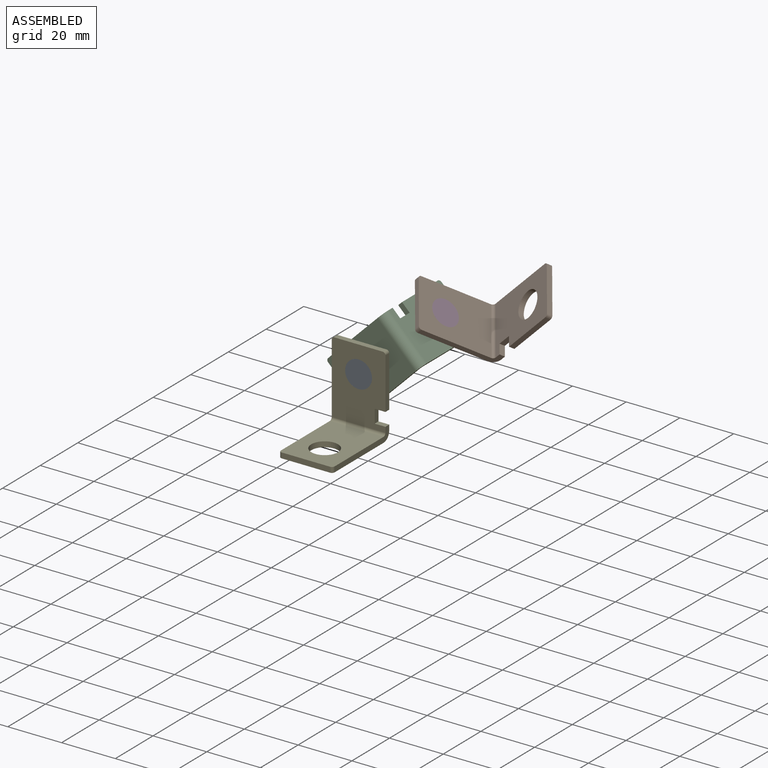
[diagram: assembled view]
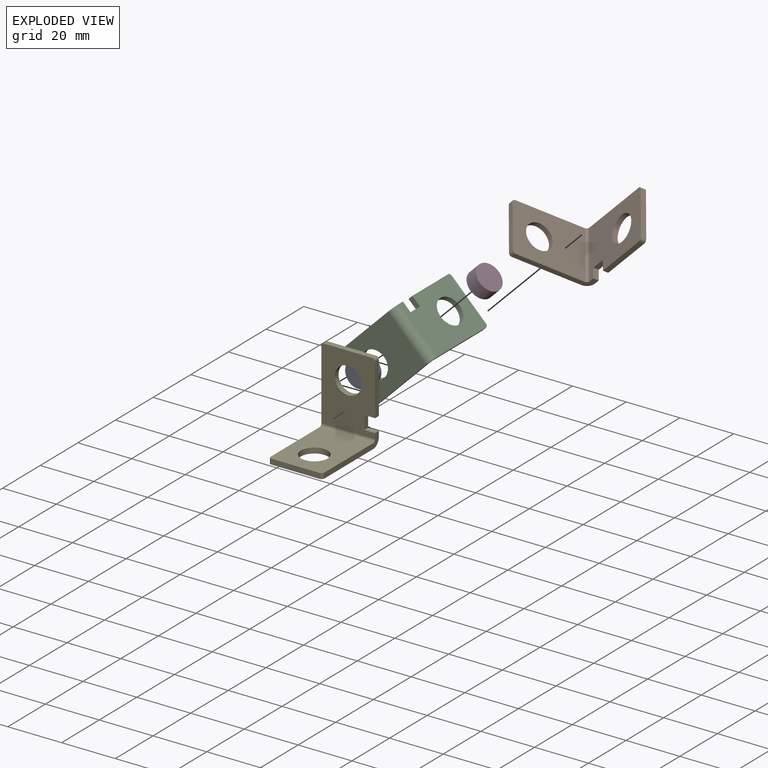
[diagram: exploded view]
GUIDED TOUR — MATED ASSEMBLY (Onshape document 0296f188ddc150b74b45b9b5, AutoMate assembly 0296f188ddc150b74b45b9b5_5ce83cc4b734294fbec21e1a_2b600807c86d1e4bce455327_default)

This assembly has 5 components, labeled P0..P4 below (a component is one placed occurrence of a part; the same part can appear more than once), held together by 11 mates. A mate is a constraint between two components; its type names the relative motion it leaves free:
  CYLINDRICAL — leaves both rotation about and translation along the listed axis free,
  PARALLEL — keeps the two listed directions parallel,
  PLANAR — leaves sliding in the plane through the listed point (normal = the listed direction) and rotation about that normal free.
Axis/direction vectors are unit vectors and 'through' points are millimeter coordinates, both in the assembly's world frame.

MATES
  1. CYLINDRICAL "Cylindrical 4": P2 <-> P3, axis (-0.707, 0.000, -0.707) through (8.53, 59.26, 21.64) mm
  2. PLANAR "Planar 1": P2 <-> P0, direction (0.000, 1.000, 0.000) through (-2.00, 41.26, 11.11) mm
  3. PARALLEL "Parallel 1": P0 <-> P4, direction (0.000, -1.000, 0.000) through (-4.90, 36.26, 8.20) mm
  4. CYLINDRICAL "Cylindrical 1": P0 <-> P4, axis (0.000, -1.000, 0.000) through (-4.90, 38.76, 8.20) mm
  5. CYLINDRICAL "Cylindrical 3": P2 <-> P3, axis (0.707, 0.000, 0.707) through (9.24, 59.26, 22.34) mm
  6. PLANAR "Planar 2": P4 <-> P0, direction (0.000, -1.000, 0.000) through (-5.26, 36.26, 4.47) mm
  7. CYLINDRICAL "Cylindrical 5": P1 <-> P3, axis (0.707, 0.000, 0.707) through (11.36, 59.26, 24.47) mm
  8. PLANAR "Planar 4": P1 <-> P3, direction (0.707, 0.000, 0.707) through (13.42, 62.17, 22.41) mm
  9. PLANAR "Planar 3": P2 <-> P3, direction (-0.707, 0.000, -0.707) through (7.83, 69.26, 20.93) mm
  10. PARALLEL "Parallel 2": P2 <-> P0, direction (0.000, 1.000, 0.000) through (-2.00, 41.26, 11.11) mm
  11. CYLINDRICAL "Cylindrical 2": P0 <-> P2, axis (0.000, -1.000, 0.000) through (-4.90, 38.76, 8.20) mm

ASSEMBLY ORDER
  1. P1 — the base component [order verified]
  2. P3 [order verified]
  3. P2 [order verified]
  4. P0 [order verified]
  5. P4 [order verified]
(P2, P3 verified with a relaxed clearance tolerance: the source model stores slight part interference there.)
Order-tag legend:
  [order verified] — this step's position reverses a verified removal order: the component was checked to insert without passing through the ones already placed.

Of the 5 components, 2 carry the full construction recipe — the FeatureScript program that regenerates the part's solid from scratch; the rest are supplied as boundary geometry only.
Each toured component is shown spotlighted twice — in the assembled view, then in the exploded view, where a leader line traces a displaced component back to its assembled socket (saturated green if recipe-attached, orange if geometry-only; every other component desaturated gray) — followed by its recipe or geometry summary and the mates that hold it.
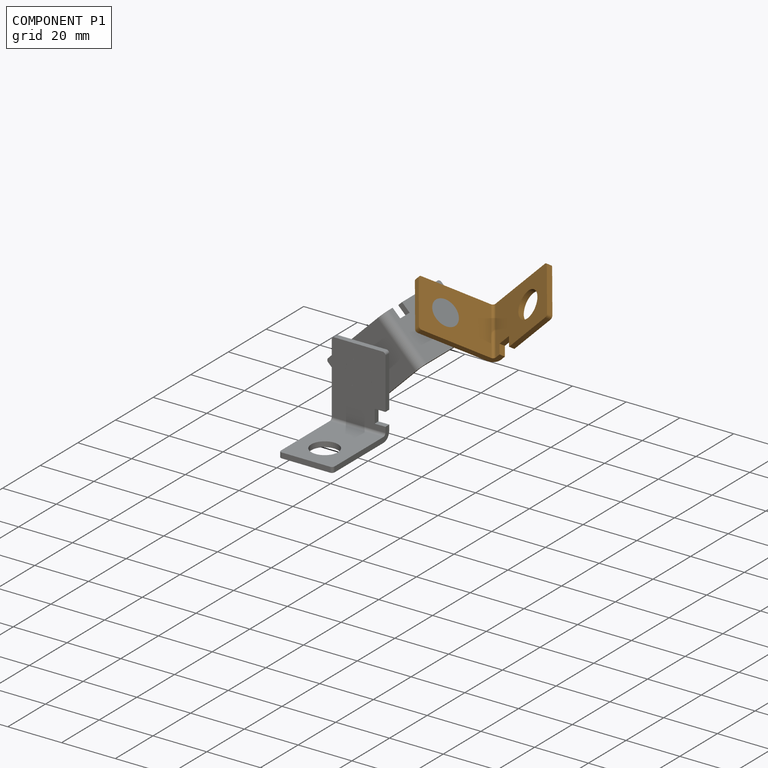
[diagram: component P1 — assembled]
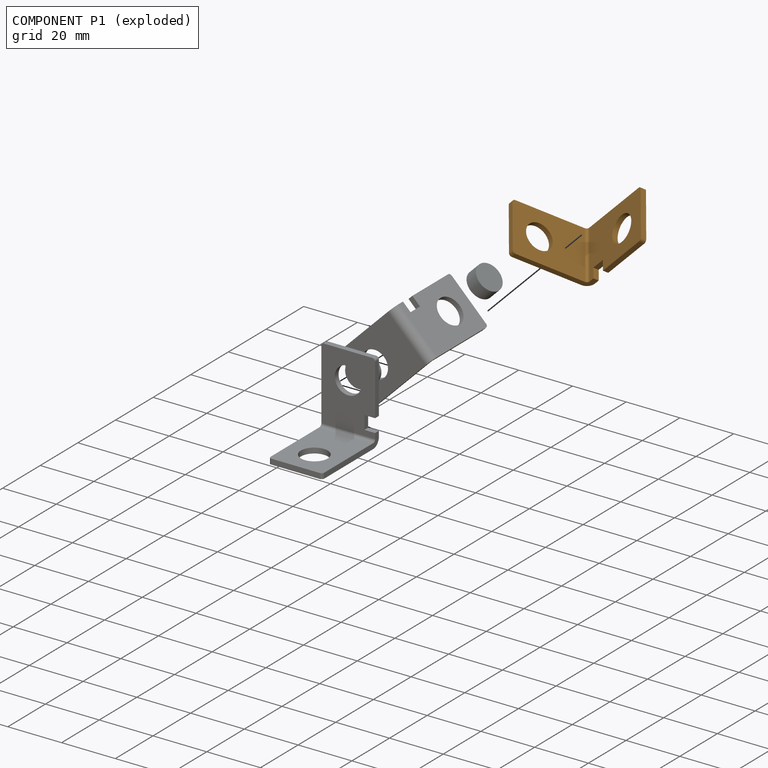
[diagram: component P1 — exploded]
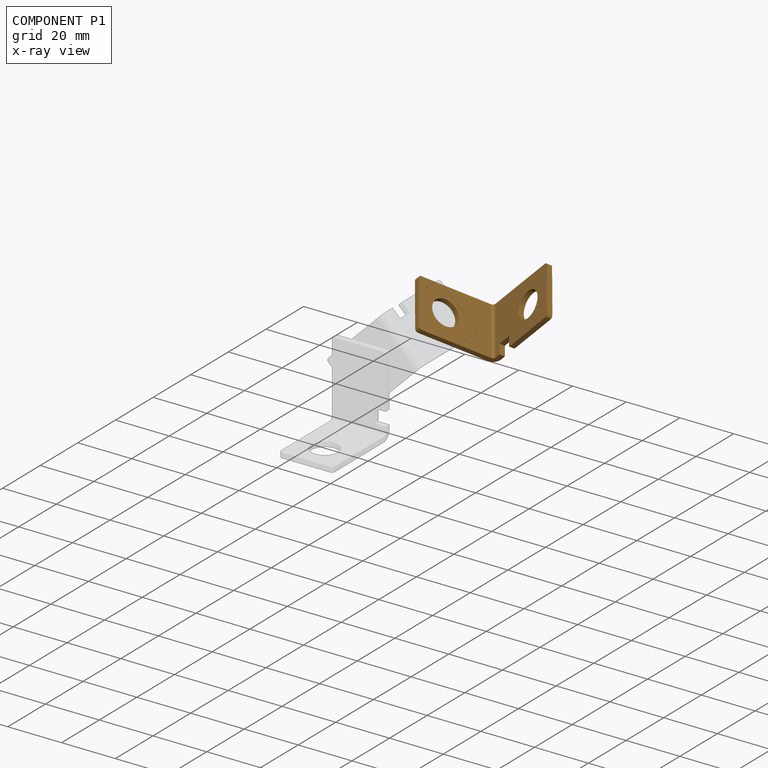
[diagram: component P1 — x-ray view]
COMPONENT P1 — geometry summary (no construction recipe available for this part):
  bounding box: 30.0 x 30.0 x 20.0 mm
  B-rep topology: 1 solid, 20 faces, 110 edges
  volume: 1930 mm^3 (11% of its bounding box)
Held by: CYLINDRICAL mate "Cylindrical 5" to P3; PLANAR mate "Planar 4" to P3.
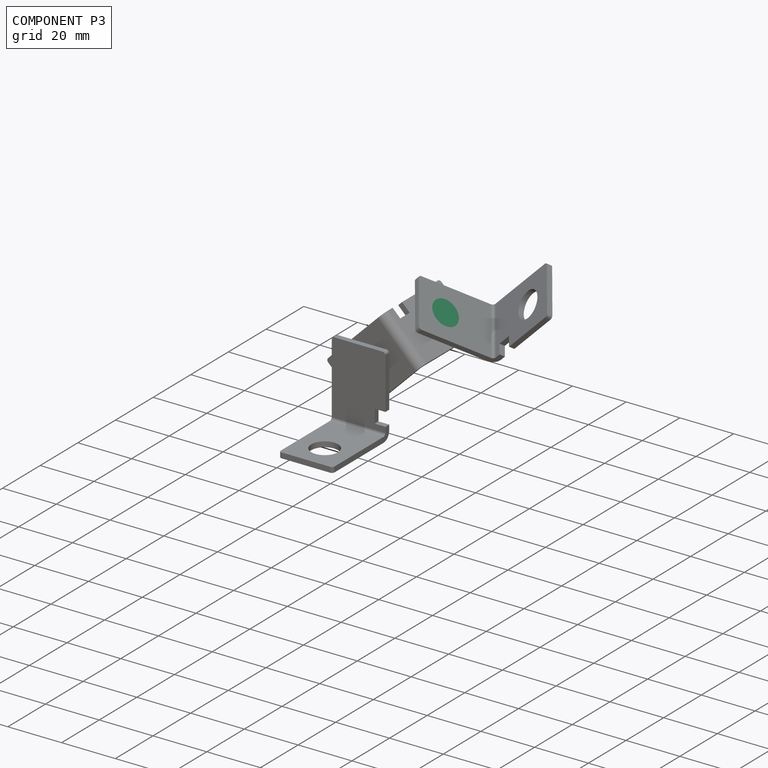
[diagram: component P3 — assembled]
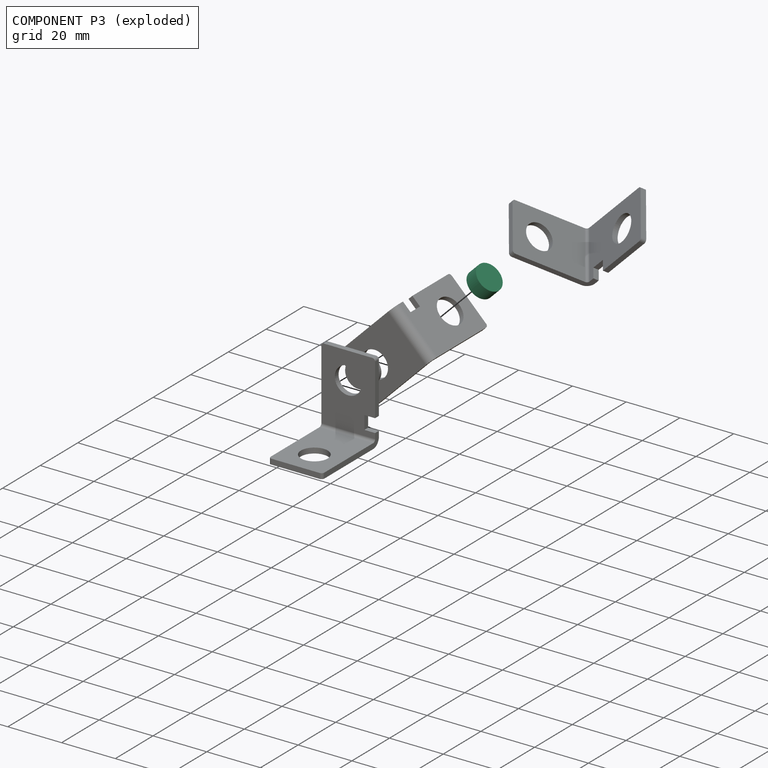
[diagram: component P3 — exploded]
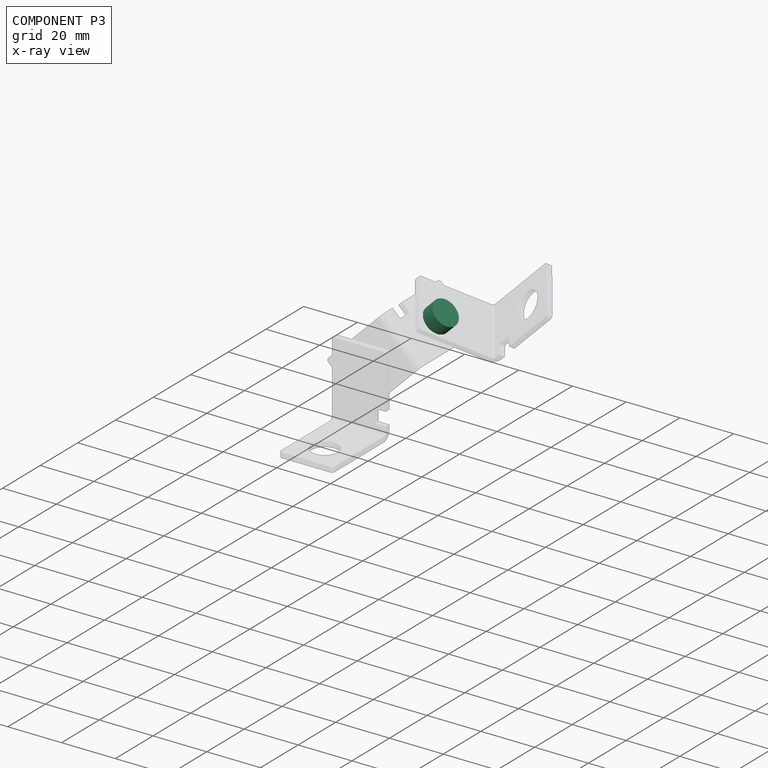
[diagram: component P3 — x-ray view]
COMPONENT P3 — same part as P0 (CADFS 00736135); its construction recipe is shown at P0.
Held by: CYLINDRICAL mate "Cylindrical 4" to P2; CYLINDRICAL mate "Cylindrical 3" to P2; CYLINDRICAL mate "Cylindrical 5" to P1; PLANAR mate "Planar 4" to P1; PLANAR mate "Planar 3" to P2.
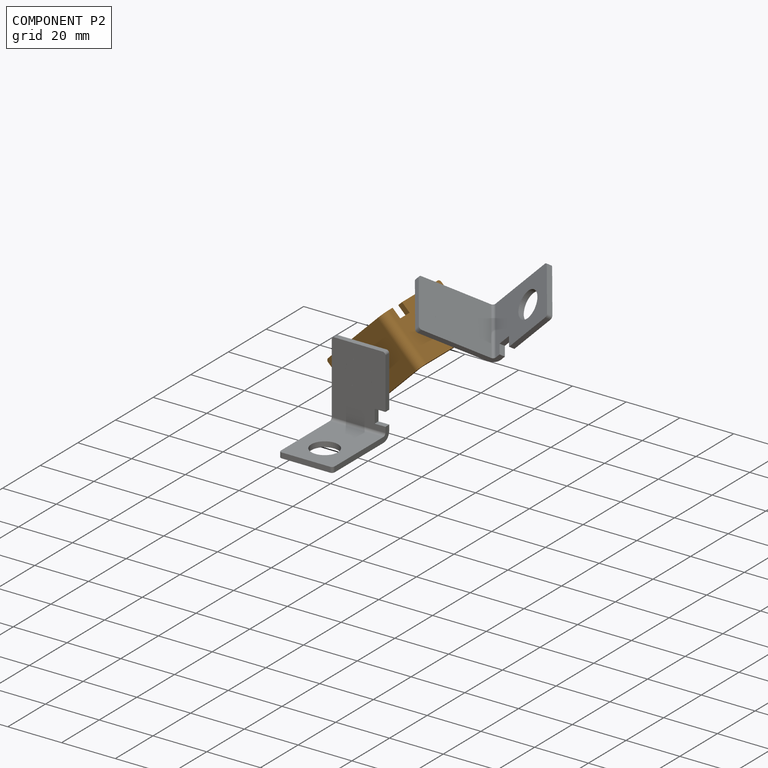
[diagram: component P2 — assembled]
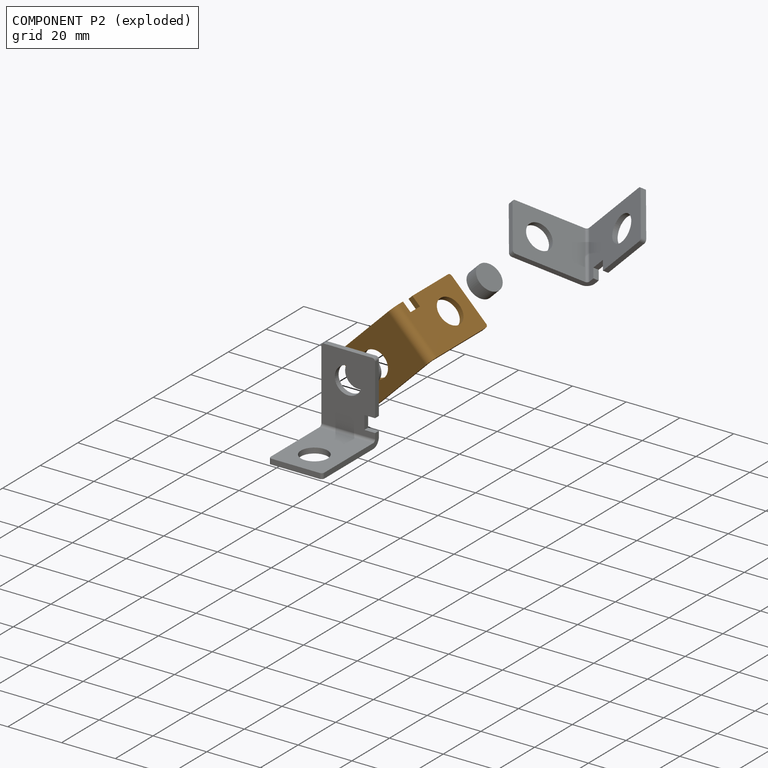
[diagram: component P2 — exploded]
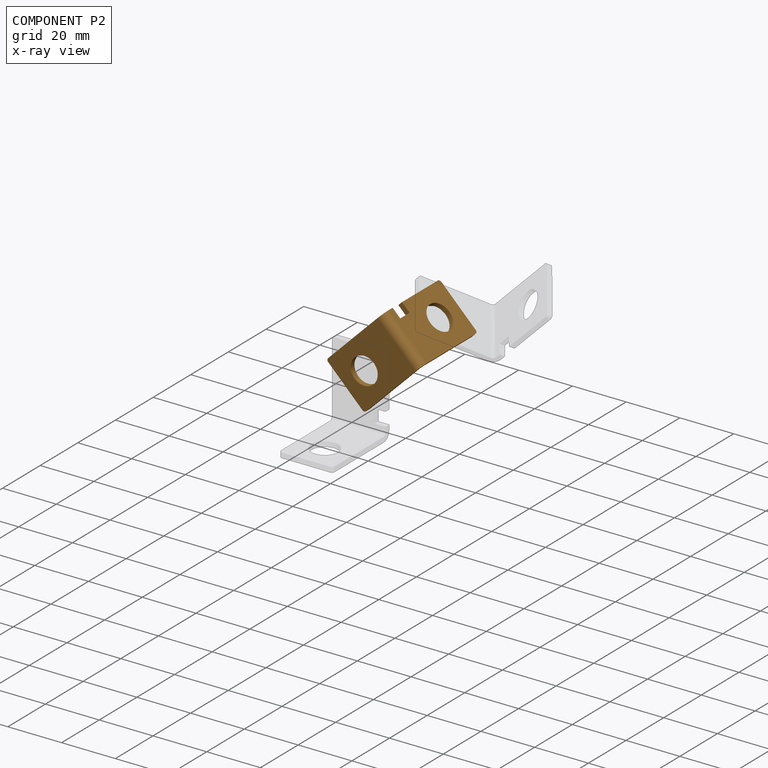
[diagram: component P2 — x-ray view]
COMPONENT P2 — geometry summary (no construction recipe available for this part):
  bounding box: 30.0 x 30.0 x 20.0 mm
  B-rep topology: 1 solid, 20 faces, 110 edges
  volume: 1930 mm^3 (11% of its bounding box)
Held by: CYLINDRICAL mate "Cylindrical 4" to P3; PLANAR mate "Planar 1" to P0; CYLINDRICAL mate "Cylindrical 3" to P3; PLANAR mate "Planar 3" to P3; PARALLEL mate "Parallel 2" to P0; CYLINDRICAL mate "Cylindrical 2" to P0.
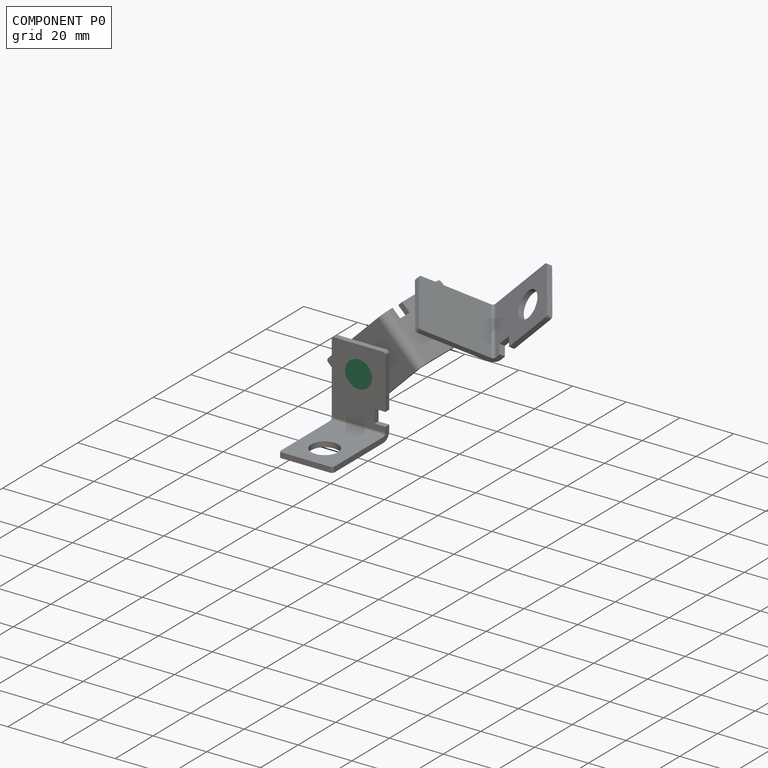
[diagram: component P0 — assembled]
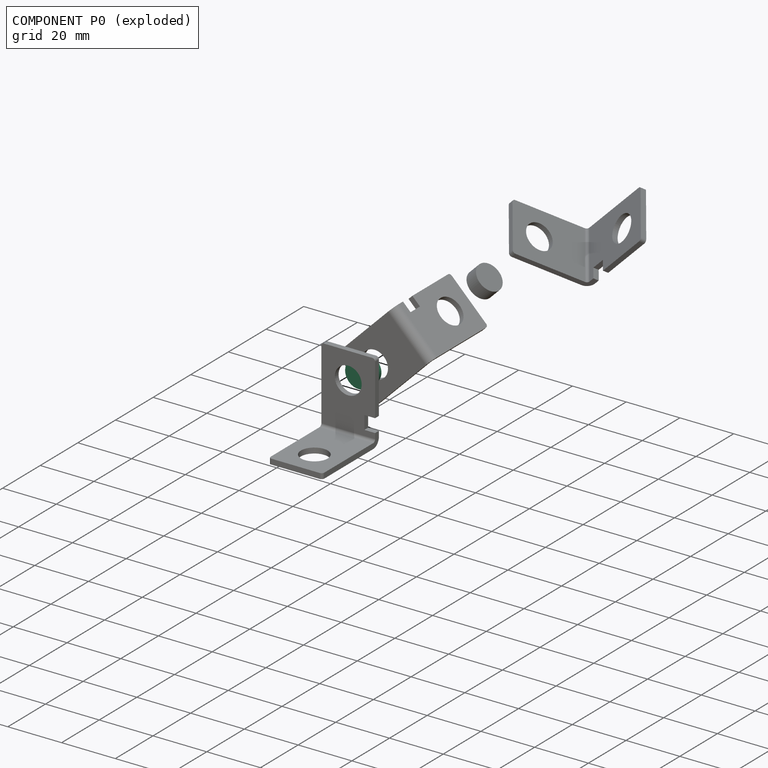
[diagram: component P0 — exploded]
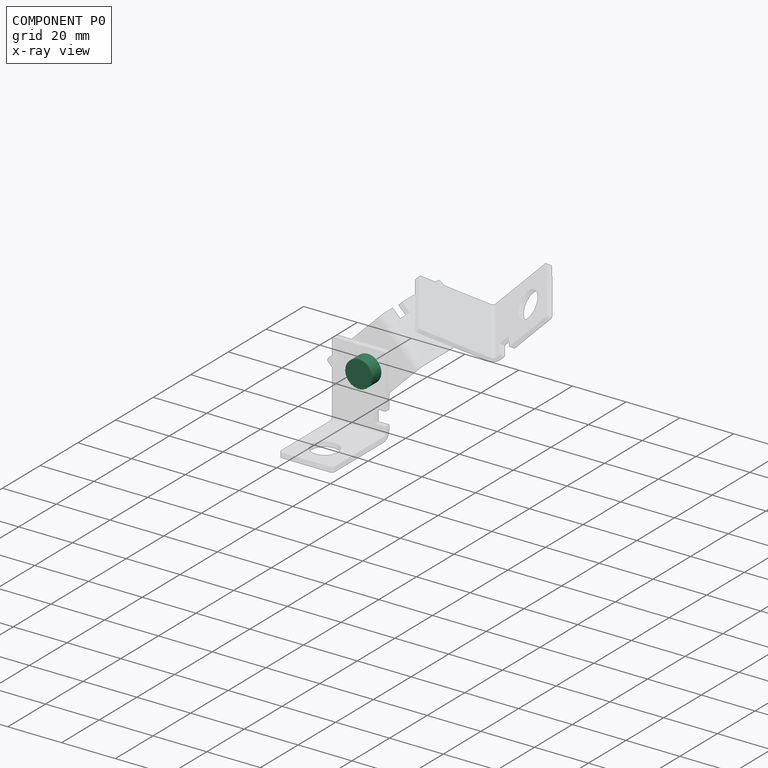
[diagram: component P0 — x-ray view]
COMPONENT P0 — recipe-attached (CADFS 00736135, mesh-verified: the recipe's output STEP matches this component's geometry to below the mesh-comparison resolution (tessellation chordal tolerance ~0.0225 mm)).
Held by: PLANAR mate "Planar 1" to P2; PARALLEL mate "Parallel 1" to P4; CYLINDRICAL mate "Cylindrical 1" to P4; PLANAR mate "Planar 2" to P4; PARALLEL mate "Parallel 2" to P2; CYLINDRICAL mate "Cylindrical 2" to P2.
Construction recipe (FeatureScript — the CAD program that rebuilds this solid; sketch coordinates are in the units given by the * unit suffixes, e.g. mm):

FeatureScript 1549;
import(path : "onshape/std/geometry.fs", version : "1549.0");
import(path : "onshape/std/common.fs", version : "1549.0");
const mm = millimeter;
const VERTEX = EntityType.VERTEX;
const EDGE = EntityType.EDGE;
const FACE = EntityType.FACE;
const BODY = EntityType.BODY;
function v(x, y){return vector(x, y);}
function OD(order){return orderDisambiguation(order);}
function OSD(set){return originalSetDisambiguation(set);}
function TD(topology){return topologyDisambiguation(topology);}
function TDD(query){return trueDependencyDisambiguation(query);}
function sQuery(a, b, c) {return sketchEntityQuery(a, b, c);}

annotation { "Feature Type Name" : "Feature", "Feature Type Description" : "" }
export const myFeature = defineFeature(function(context is Context, id is Id, definition is map)
    precondition{}
    {
        {
            var Q0;
            Q0=qCreatedBy(makeId("Top.planeOp"),FACE);
            var sketch = newSketch(context, id + "F0", { "sketchPlane" : qUnion([Q0])});
            skCircle(sketch, "E0", {"center": v(0, 0) * mm, "radius": 5 * mm});
            skSolve(sketch);
        }
        {
            var Q0;
            Q0 = qSketchRegion(id + "F0", true);
            extrude(context, id + "F1", {"entities" : qUnion([Q0]), "depth" : 5 * mm, "offsetDistance" : 25 * mm});
        }
    });
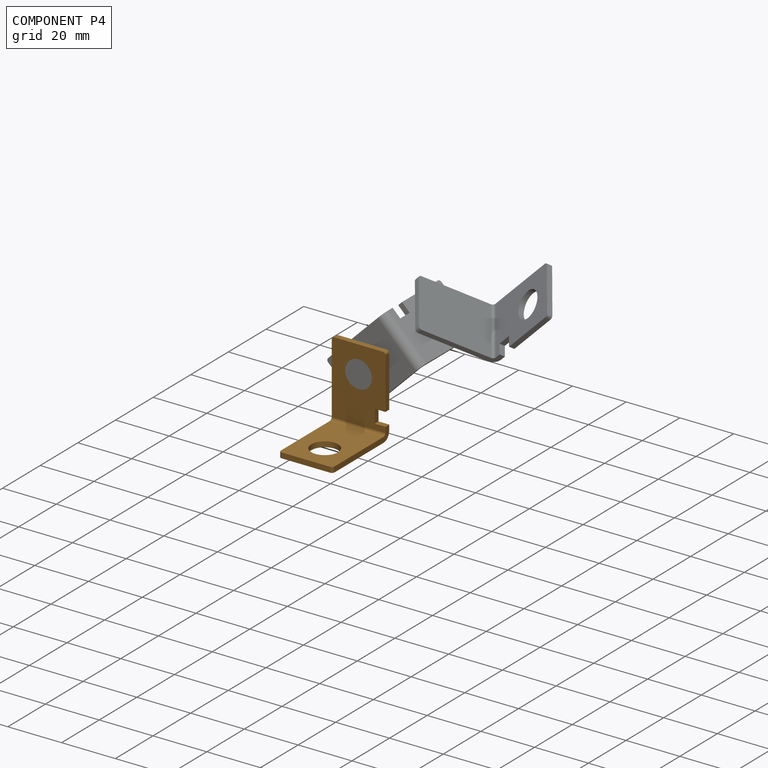
[diagram: component P4 — assembled]
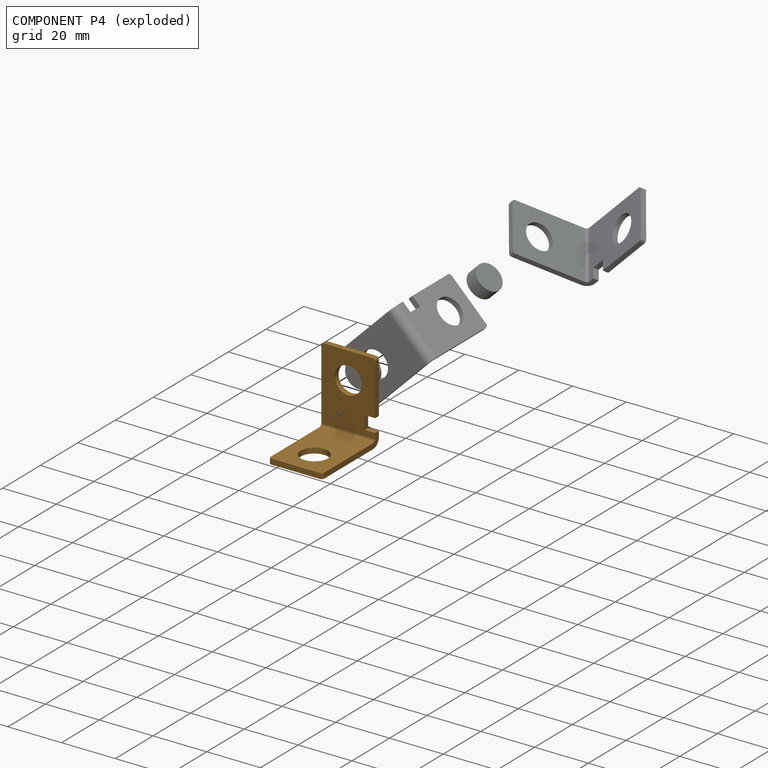
[diagram: component P4 — exploded]
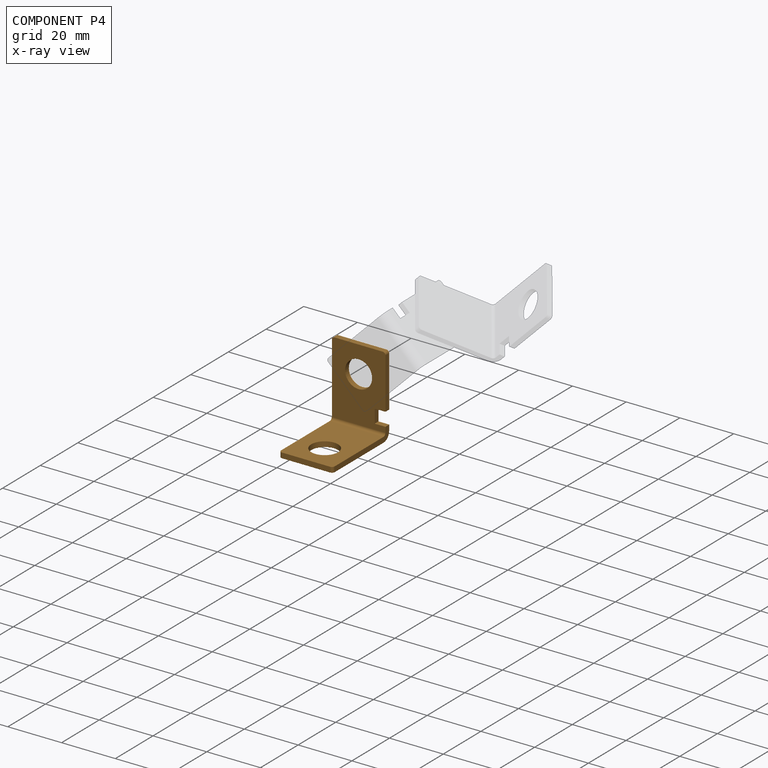
[diagram: component P4 — x-ray view]
COMPONENT P4 — geometry summary (no construction recipe available for this part):
  bounding box: 30.0 x 30.0 x 20.0 mm
  B-rep topology: 1 solid, 20 faces, 110 edges
  volume: 1930 mm^3 (11% of its bounding box)
Held by: PARALLEL mate "Parallel 1" to P0; CYLINDRICAL mate "Cylindrical 1" to P0; PLANAR mate "Planar 2" to P0.
PROVENANCE & LICENSES
Assembly (occurrences, transforms, mates, per-part STEP geometry): AutoMate dataset, Zenodo record 7776208, CC0.
Construction recipes: CADFS (HuggingFace VladPyatov/CADFS, CC-BY-4.0, layered over the ABC dataset), FeatureScript reconstruction programs keyed by ABC model id.
Join: ABC meta listings map ABC model id -> Onshape documentId; within a shared document, parts are matched by geometric signature (bounding-box dims + volume at 0.1% relative tolerance, exact B-rep face/solid counts).
Verification: 2 of this assembly's 5 components carry a recipe attachment, and every attachment is mesh-verified: the CADFS STEP and the AutoMate member STEP were compared as meshes in their shared local frame (symmetric sampled-point-to-mesh distance); worst across the 2 attachments: below the mesh-comparison resolution (tessellation chordal tolerance ~0.0225 mm) on a 15 mm part.
Renders: orthographic iso camera (az 35 / el 25); the floor grid conveys scale (grid pitch printed in each image; no ruler). In the exploded view each component is displaced by its stored offset vector: the offsets alone carry the explosion direction (mate normal/axis signs are not orientation cues and do not encode it), and separation distances are assigned per mate-chain, not proportionally to assembly-order depth.
